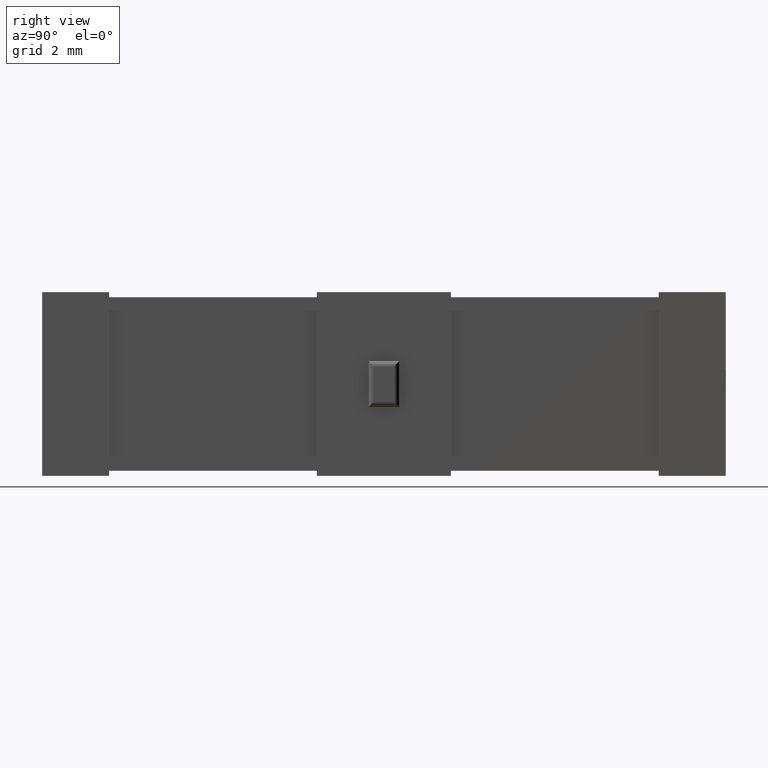
[diagram: clean part render]
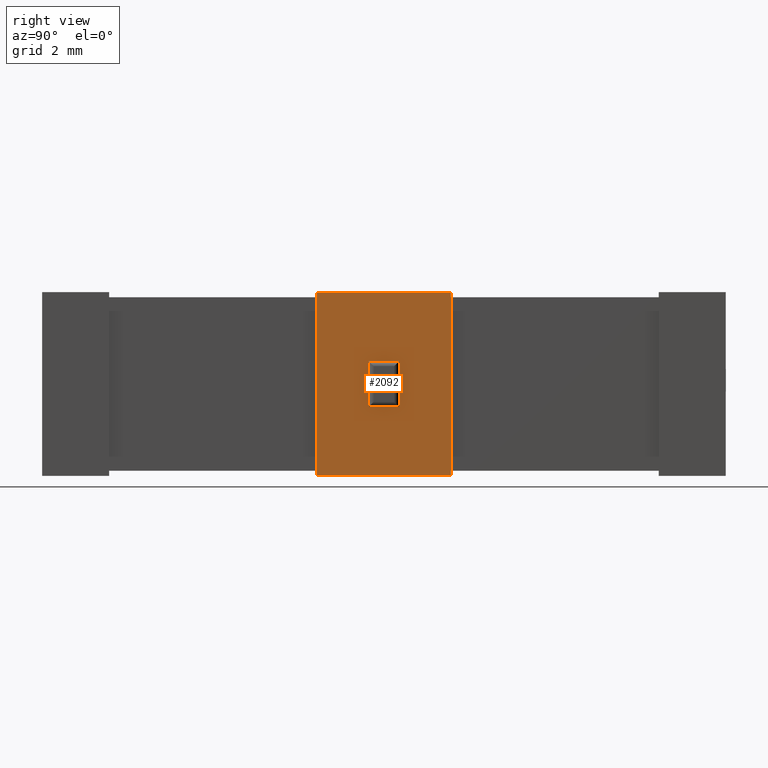
[diagram: same view with one face highlighted and labeled with its STEP entity id]
A machine part, right view. The second image highlights one B-rep face of the part: STEP entity #2092.
In plain terms, the highlighted planar face has unit normal (-1, -0, 0).
Its self-contained STEP definition (entity closure, byte-faithful):
#5 = LINE ( 'NONE', #1638, #1284 ) ;
#135 = CARTESIAN_POINT ( 'NONE',  ( 5.099999999999999600, 10.50000225000000000, 3.374999999999999600 ) ) ;
#188 = PLANE ( 'NONE',  #364 ) ;
#216 = CARTESIAN_POINT ( 'NONE',  ( 5.100000000000000500, 0.0000000000000000000, 5.400000000000000400 ) ) ;
#224 = VERTEX_POINT ( 'NONE', #277 ) ;
#230 = VECTOR ( 'NONE', #1909, 1000.000000000000000 ) ;
#254 = CARTESIAN_POINT ( 'NONE',  ( 5.100000000000000500, 9.599997750000000000, 3.374999999999999600 ) ) ;
#255 = DIRECTION ( 'NONE',  ( 0.0000000000000000000, -0.0000000000000000000, -1.000000000000000000 ) ) ;
#277 = CARTESIAN_POINT ( 'NONE',  ( 5.099999999999999600, 10.50000225000000000, 3.374999999999999600 ) ) ;
#314 = VERTEX_POINT ( 'NONE', #254 ) ;
#343 = CARTESIAN_POINT ( 'NONE',  ( 5.100000000000000500, 8.080199999999999600, 5.250000000000000000 ) ) ;
#364 = AXIS2_PLACEMENT_3D ( 'NONE', #216, #989, #2301 ) ;
#406 = VECTOR ( 'NONE', #1654, 1000.000000000000000 ) ;
#513 = VERTEX_POINT ( 'NONE', #2010 ) ;
#559 = LINE ( 'NONE', #1940, #230 ) ;
#624 = DIRECTION ( 'NONE',  ( -0.0000000000000000000, -0.0000000000000000000, 1.000000000000000000 ) ) ;
#645 = ORIENTED_EDGE ( 'NONE', *, *, #1972, .T. ) ;
#664 = EDGE_CURVE ( 'NONE', #2556, #2502, #1637, .T. ) ;
#701 = LINE ( 'NONE', #2053, #1097 ) ;
#737 = ORIENTED_EDGE ( 'NONE', *, *, #3260, .F. ) ;
#766 = VERTEX_POINT ( 'NONE', #2680 ) ;
#798 = DIRECTION ( 'NONE',  ( 0.0000000000000000000, -1.000000000000000000, -0.0000000000000000000 ) ) ;
#810 = EDGE_LOOP ( 'NONE', ( #737, #645, #2320, #2206 ) ) ;
#829 = VECTOR ( 'NONE', #2892, 1000.000000000000000 ) ;
#861 = FACE_BOUND ( 'NONE', #3013, .T. ) ;
#955 = CARTESIAN_POINT ( 'NONE',  ( 5.099999999999999600, 10.50000225000000000, 2.024999999999999500 ) ) ;
#989 = DIRECTION ( 'NONE',  ( -1.000000000000000000, -4.315232527305491800E-017, 0.0000000000000000000 ) ) ;
#1097 = VECTOR ( 'NONE', #255, 1000.000000000000000 ) ;
#1135 = LINE ( 'NONE', #2342, #829 ) ;
#1240 = VERTEX_POINT ( 'NONE', #2406 ) ;
#1284 = VECTOR ( 'NONE', #1970, 1000.000000000000000 ) ;
#1295 = CARTESIAN_POINT ( 'NONE',  ( 5.100000000000000500, 8.080199999999999600, 5.400000000000000400 ) ) ;
#1317 = VECTOR ( 'NONE', #624, 1000.000000000000000 ) ;
#1323 = LINE ( 'NONE', #135, #406 ) ;
#1380 = ORIENTED_EDGE ( 'NONE', *, *, #1434, .T. ) ;
#1434 = EDGE_CURVE ( 'NONE', #314, #224, #1323, .T. ) ;
#1563 = ORIENTED_EDGE ( 'NONE', *, *, #2405, .T. ) ;
#1637 = LINE ( 'NONE', #1821, #2962 ) ;
#1638 = CARTESIAN_POINT ( 'NONE',  ( 5.100000000000000500, 0.0000000000000000000, 0.0000000000000000000 ) ) ;
#1654 = DIRECTION ( 'NONE',  ( 0.0000000000000000000, 1.000000000000000000, 0.0000000000000000000 ) ) ;
#1821 = CARTESIAN_POINT ( 'NONE',  ( 5.099999999999999600, 10.05000000000000100, 2.024999999999999500 ) ) ;
#1909 = DIRECTION ( 'NONE',  ( 0.0000000000000000000, 0.0000000000000000000, 1.000000000000000000 ) ) ;
#1940 = CARTESIAN_POINT ( 'NONE',  ( 5.099999999999999600, 9.599997750000000000, 3.374999999999999600 ) ) ;
#1970 = DIRECTION ( 'NONE',  ( -4.315232527305490500E-017, 1.000000000000000000, 0.0000000000000000000 ) ) ;
#1972 = EDGE_CURVE ( 'NONE', #1240, #766, #5, .T. ) ;
#2010 = CARTESIAN_POINT ( 'NONE',  ( 5.100000000000000500, 12.01980000000000000, 5.400000000000000400 ) ) ;
#2053 = CARTESIAN_POINT ( 'NONE',  ( 5.099999999999999600, 10.50000225000000000, 2.699999999999999700 ) ) ;
#2092 = ADVANCED_FACE ( 'NONE', ( #861, #2576 ), #188, .F. ) ;
#2206 = ORIENTED_EDGE ( 'NONE', *, *, #3024, .F. ) ;
#2233 = LINE ( 'NONE', #343, #1317 ) ;
#2262 = VECTOR ( 'NONE', #2772, 1000.000000000000000 ) ;
#2301 = DIRECTION ( 'NONE',  ( 4.315232527305491800E-017, -1.000000000000000000, 0.0000000000000000000 ) ) ;
#2320 = ORIENTED_EDGE ( 'NONE', *, *, #2629, .T. ) ;
#2342 = CARTESIAN_POINT ( 'NONE',  ( 5.100000000000000500, 0.0000000000000000000, 5.400000000000000400 ) ) ;
#2405 = EDGE_CURVE ( 'NONE', #2502, #314, #559, .T. ) ;
#2406 = CARTESIAN_POINT ( 'NONE',  ( 5.100000000000000500, 8.080199999999999600, 1.734723475976807100E-015 ) ) ;
#2485 = CARTESIAN_POINT ( 'NONE',  ( 5.099999999999999600, 9.599997750000000000, 2.024999999999999500 ) ) ;
#2502 = VERTEX_POINT ( 'NONE', #2485 ) ;
#2556 = VERTEX_POINT ( 'NONE', #955 ) ;
#2576 = FACE_OUTER_BOUND ( 'NONE', #810, .T. ) ;
#2629 = EDGE_CURVE ( 'NONE', #766, #513, #2980, .T. ) ;
#2680 = CARTESIAN_POINT ( 'NONE',  ( 5.100000000000000500, 12.01980000000000000, 1.734723475976807100E-015 ) ) ;
#2772 = DIRECTION ( 'NONE',  ( -0.0000000000000000000, -0.0000000000000000000, 1.000000000000000000 ) ) ;
#2892 = DIRECTION ( 'NONE',  ( -4.315232527305490500E-017, 1.000000000000000000, 0.0000000000000000000 ) ) ;
#2962 = VECTOR ( 'NONE', #798, 1000.000000000000000 ) ;
#2980 = LINE ( 'NONE', #3023, #2262 ) ;
#3013 = EDGE_LOOP ( 'NONE', ( #3330, #3363, #1563, #1380 ) ) ;
#3017 = VERTEX_POINT ( 'NONE', #1295 ) ;
#3020 = EDGE_CURVE ( 'NONE', #224, #2556, #701, .T. ) ;
#3023 = CARTESIAN_POINT ( 'NONE',  ( 5.100000000000000500, 12.01980000000000000, 5.250000000000000000 ) ) ;
#3024 = EDGE_CURVE ( 'NONE', #3017, #513, #1135, .T. ) ;
#3260 = EDGE_CURVE ( 'NONE', #1240, #3017, #2233, .T. ) ;
#3330 = ORIENTED_EDGE ( 'NONE', *, *, #3020, .T. ) ;
#3363 = ORIENTED_EDGE ( 'NONE', *, *, #664, .T. ) ;